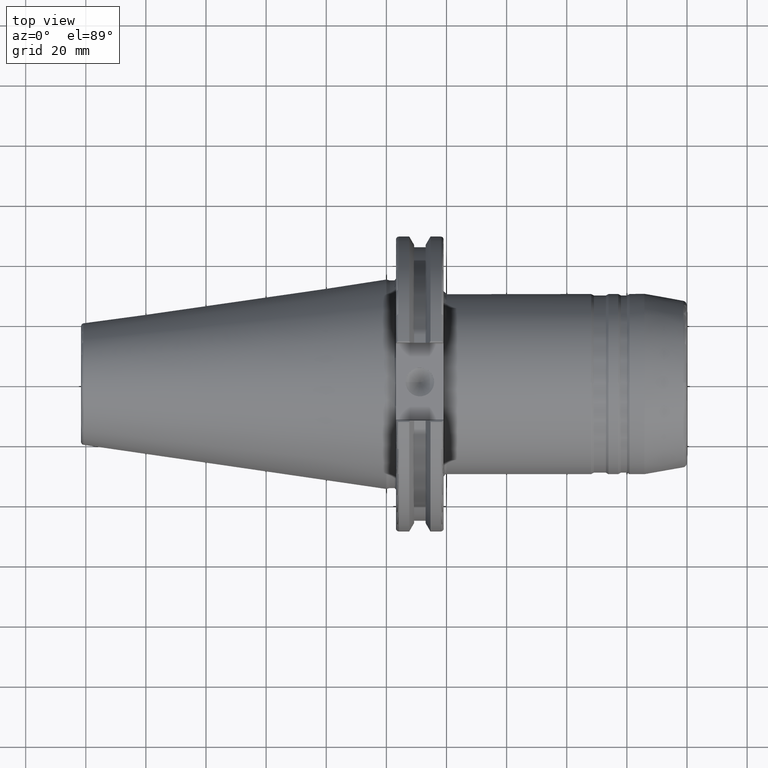
[diagram: clean part render]
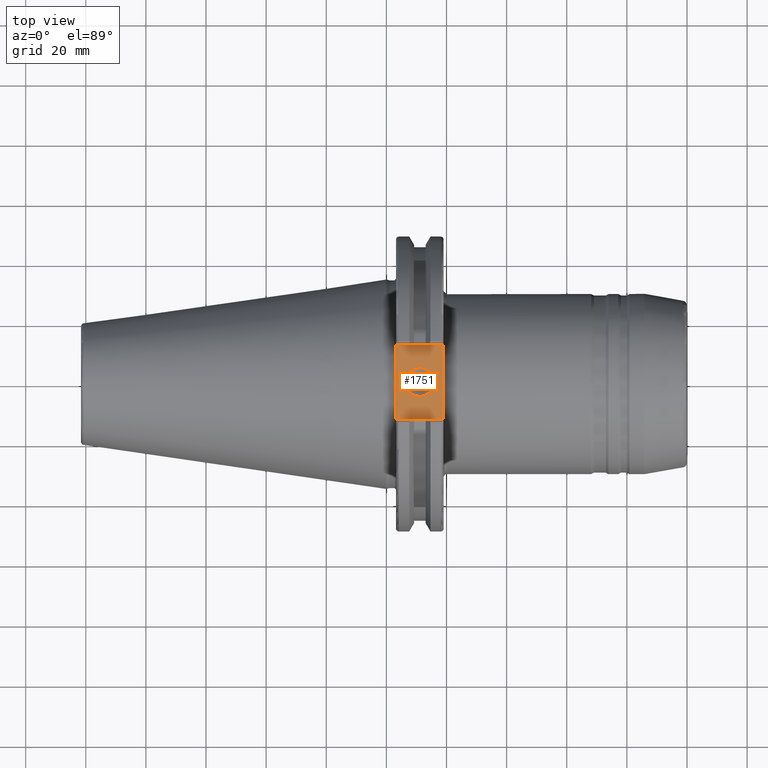
[diagram: same view with one face highlighted and labeled with its STEP entity id]
A machine part, top view. The second image highlights one B-rep face of the part: STEP entity #1751.
In plain terms, the highlighted planar face has unit normal (0, 0, 1).
Its self-contained STEP definition (entity closure, byte-faithful):
#122=FACE_BOUND('',#373,.T.);
#157=PLANE('',#2001);
#254=FACE_OUTER_BOUND('',#372,.T.);
#372=EDGE_LOOP('',(#1605,#1606,#1607,#1608));
#373=EDGE_LOOP('',(#1609));
#395=LINE('',#2723,#489);
#422=LINE('',#2948,#516);
#456=LINE('',#3208,#550);
#458=LINE('',#3211,#552);
#489=VECTOR('',#2206,10.);
#516=VECTOR('',#2363,10.);
#550=VECTOR('',#2463,10.);
#552=VECTOR('',#2467,10.);
#666=CIRCLE('',#1984,4.7625);
#728=VERTEX_POINT('',#2720);
#729=VERTEX_POINT('',#2722);
#779=VERTEX_POINT('',#2945);
#780=VERTEX_POINT('',#2947);
#844=VERTEX_POINT('',#3268);
#924=EDGE_CURVE('',#728,#729,#395,.T.);
#995=EDGE_CURVE('',#779,#780,#422,.T.);
#1068=EDGE_CURVE('',#729,#779,#456,.T.);
#1070=EDGE_CURVE('',#780,#728,#458,.T.);
#1092=EDGE_CURVE('',#844,#844,#666,.T.);
#1605=ORIENTED_EDGE('',*,*,#1068,.F.);
#1606=ORIENTED_EDGE('',*,*,#924,.F.);
#1607=ORIENTED_EDGE('',*,*,#1070,.F.);
#1608=ORIENTED_EDGE('',*,*,#995,.F.);
#1609=ORIENTED_EDGE('',*,*,#1092,.T.);
#1751=ADVANCED_FACE('',(#254,#122),#157,.T.);
#1984=AXIS2_PLACEMENT_3D('',#3269,#2510,#2511);
#2001=AXIS2_PLACEMENT_3D('',#3287,#2545,#2546);
#2206=DIRECTION('',(0.,-1.,0.));
#2363=DIRECTION('',(0.,1.,0.));
#2463=DIRECTION('',(-1.,1.31581988103722E-16,0.));
#2467=DIRECTION('',(1.,0.,0.));
#2510=DIRECTION('center_axis',(0.,0.,-1.));
#2511=DIRECTION('ref_axis',(1.,0.,0.));
#2545=DIRECTION('center_axis',(0.,0.,1.));
#2546=DIRECTION('ref_axis',(1.,0.,0.));
#2720=CARTESIAN_POINT('',(19.05,12.45,37.719));
#2722=CARTESIAN_POINT('',(19.05,-12.45,37.719));
#2723=CARTESIAN_POINT('',(19.05,0.,37.719));
#2945=CARTESIAN_POINT('',(3.175,-12.45,37.719));
#2947=CARTESIAN_POINT('',(3.175,12.45,37.719));
#2948=CARTESIAN_POINT('',(3.175,24.60625,37.719));
#3208=CARTESIAN_POINT('',(10.63125,-12.45,37.719));
#3211=CARTESIAN_POINT('',(19.06875,12.45,37.719));
#3268=CARTESIAN_POINT('',(6.3645,-5.83238038093927E-16,37.719));
#3269=CARTESIAN_POINT('Origin',(11.127,0.,37.719));
#3287=CARTESIAN_POINT('Origin',(18.0875,0.,37.719));